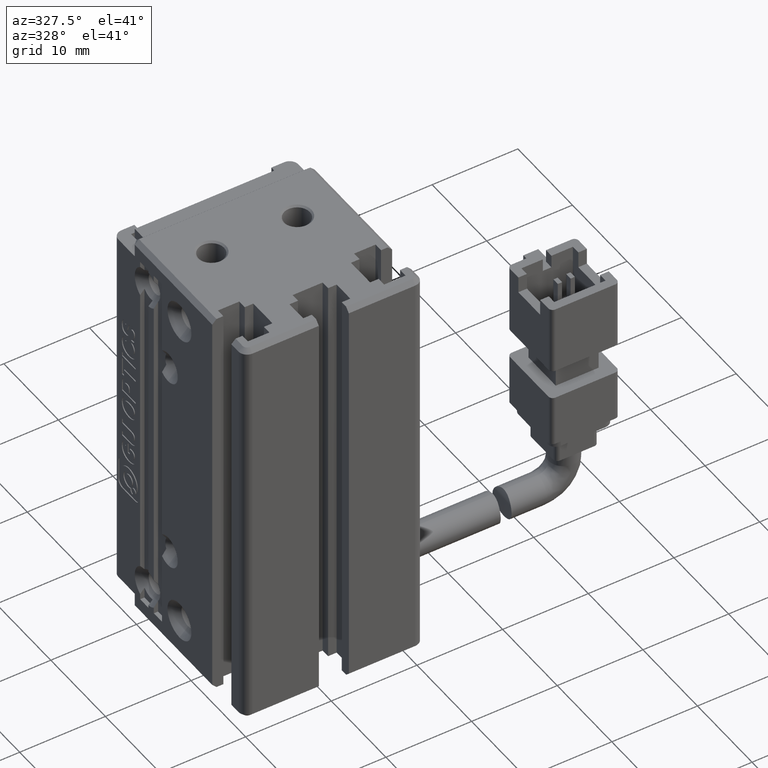
[diagram: clean part render]
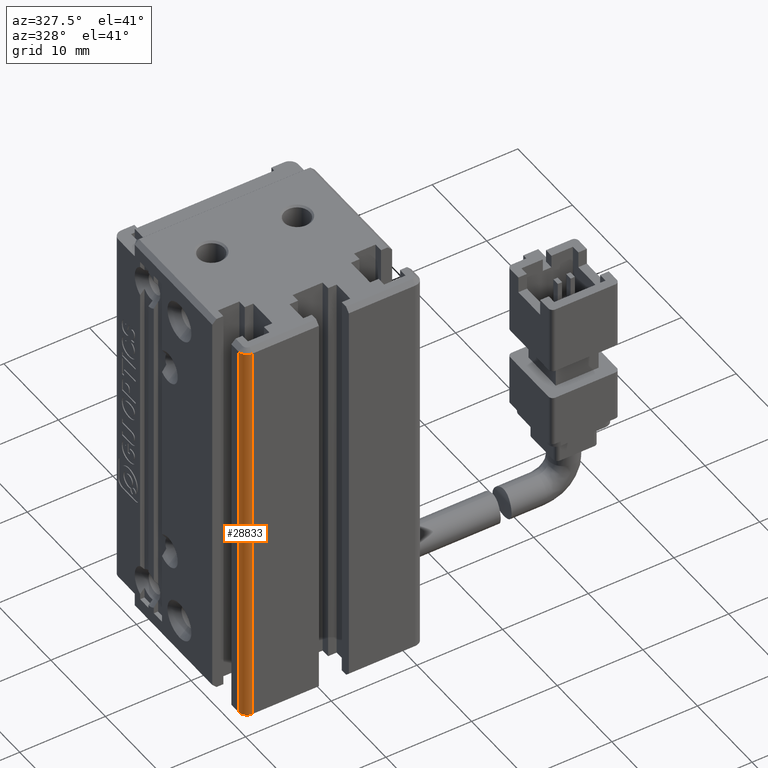
[diagram: same view with one face highlighted and labeled with its STEP entity id]
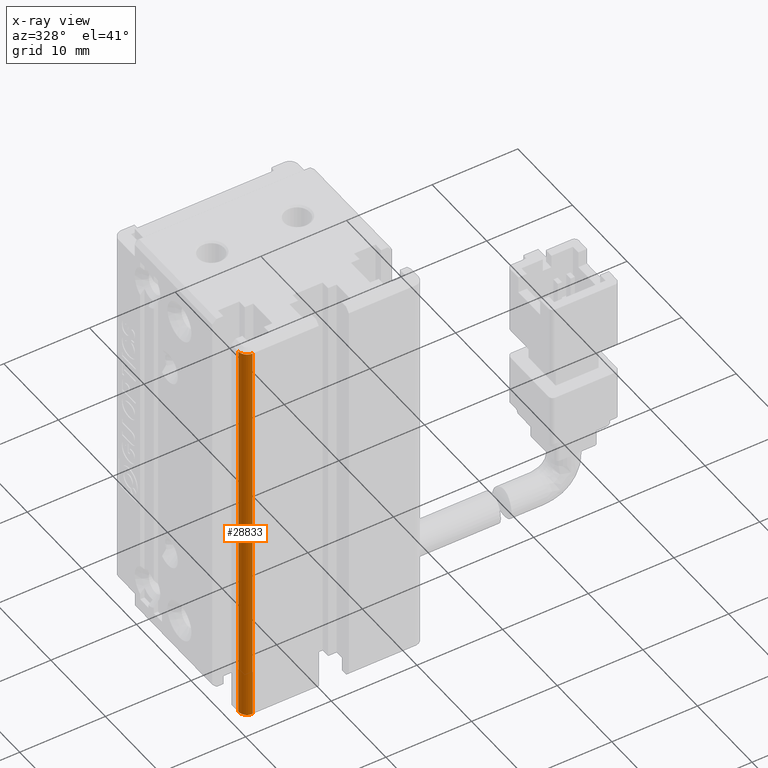
[diagram: x-ray of the same camera — body ghosted, the highlighted face saturated]
A machine part, auxiliary view. The second image highlights one B-rep face of the part: STEP entity #28833.
The next image is the same camera in x-ray: the body ghosted, the highlighted face saturated — about 0% of this face is hidden behind the body in this view.
In plain terms, the highlighted cylindrical surface (edge-blend (fillet) strip) has radius 1 mm, axis along (-0, -0, -1).
Its self-contained STEP definition (entity closure, byte-faithful):
#882 = VERTEX_POINT ( 'NONE', #12668 ) ;
#2523 = ORIENTED_EDGE ( 'NONE', *, *, #30016, .F. ) ;
#2765 = EDGE_CURVE ( 'NONE', #24218, #882, #17035, .T. ) ;
#4411 = CARTESIAN_POINT ( 'NONE',  ( 30.42537974683542500, 11.99073232304837000, -91.00000000000000000 ) ) ;
#4515 = AXIS2_PLACEMENT_3D ( 'NONE', #22327, #5193, #20740 ) ;
#4737 = CARTESIAN_POINT ( 'NONE',  ( 31.42537974683542900, 10.99073232304837000, -91.00000000000000000 ) ) ;
#4844 = CIRCLE ( 'NONE', #4515, 1.000000000000000900 ) ;
#5140 = CARTESIAN_POINT ( 'NONE',  ( 31.42537974683542900, 10.99073232304837000, -91.50000000000000000 ) ) ;
#5193 = DIRECTION ( 'NONE',  ( -0.0000000000000000000, -0.0000000000000000000, -1.000000000000000000 ) ) ;
#5363 = ORIENTED_EDGE ( 'NONE', *, *, #29371, .T. ) ;
#5694 = LINE ( 'NONE', #4737, #19722 ) ;
#10942 = CYLINDRICAL_SURFACE ( 'NONE', #15467, 1.000000000000000900 ) ;
#11058 = DIRECTION ( 'NONE',  ( 1.000000000000000000, -1.734723476022570500E-015, 0.0000000000000000000 ) ) ;
#11127 = EDGE_LOOP ( 'NONE', ( #38184, #22508, #2523, #5363 ) ) ;
#12243 = CARTESIAN_POINT ( 'NONE',  ( 30.42537974683542500, 11.99073232304837000, -91.50000000000000000 ) ) ;
#12302 = VERTEX_POINT ( 'NONE', #26633 ) ;
#12668 = CARTESIAN_POINT ( 'NONE',  ( 30.42537974684202200, 11.99073232304837000, -138.5000000000031800 ) ) ;
#13646 = DIRECTION ( 'NONE',  ( -0.0000000000000000000, -0.0000000000000000000, -1.000000000000000000 ) ) ;
#15467 = AXIS2_PLACEMENT_3D ( 'NONE', #17781, #21350, #23976 ) ;
#17035 = LINE ( 'NONE', #4411, #33503 ) ;
#17781 = CARTESIAN_POINT ( 'NONE',  ( 31.42537974683542900, 11.99073232304837000, -91.00000000000000000 ) ) ;
#19722 = VECTOR ( 'NONE', #22370, 1000.000000000000000 ) ;
#20740 = DIRECTION ( 'NONE',  ( -1.000000000000000000, 0.0000000000000000000, 0.0000000000000000000 ) ) ;
#21350 = DIRECTION ( 'NONE',  ( -0.0000000000000000000, -0.0000000000000000000, -1.000000000000000000 ) ) ;
#22327 = CARTESIAN_POINT ( 'NONE',  ( 31.42537974683542900, 11.99073232304837000, -91.50000000000000000 ) ) ;
#22370 = DIRECTION ( 'NONE',  ( 0.0000000000000000000, -0.0000000000000000000, -1.000000000000000000 ) ) ;
#22508 = ORIENTED_EDGE ( 'NONE', *, *, #23719, .F. ) ;
#23090 = VERTEX_POINT ( 'NONE', #5140 ) ;
#23719 = EDGE_CURVE ( 'NONE', #12302, #882, #32024, .T. ) ;
#23976 = DIRECTION ( 'NONE',  ( -1.000000000000000000, 0.0000000000000000000, 0.0000000000000000000 ) ) ;
#24218 = VERTEX_POINT ( 'NONE', #12243 ) ;
#26040 = AXIS2_PLACEMENT_3D ( 'NONE', #37896, #29042, #11058 ) ;
#26633 = CARTESIAN_POINT ( 'NONE',  ( 31.42537974683542900, 10.99073232305496000, -138.5000000000031800 ) ) ;
#28833 = ADVANCED_FACE ( 'NONE', ( #28834 ), #10942, .T. ) ;
#28834 = FACE_OUTER_BOUND ( 'NONE', #11127, .T. ) ;
#29042 = DIRECTION ( 'NONE',  ( -0.0000000000000000000, -0.0000000000000000000, -1.000000000000000000 ) ) ;
#29371 = EDGE_CURVE ( 'NONE', #23090, #24218, #4844, .T. ) ;
#30016 = EDGE_CURVE ( 'NONE', #23090, #12302, #5694, .T. ) ;
#32024 = CIRCLE ( 'NONE', #26040, 0.9999999999736192100 ) ;
#33503 = VECTOR ( 'NONE', #13646, 1000.000000000000000 ) ;
#37896 = CARTESIAN_POINT ( 'NONE',  ( 31.42537974683542900, 11.99073232304837000, -138.5000000000127300 ) ) ;
#38184 = ORIENTED_EDGE ( 'NONE', *, *, #2765, .T. ) ;